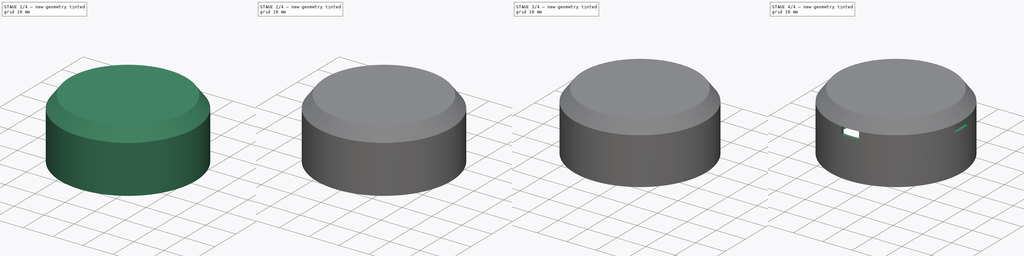
[diagram: build sequence overview — one tinted view per stage of 4, left to right]
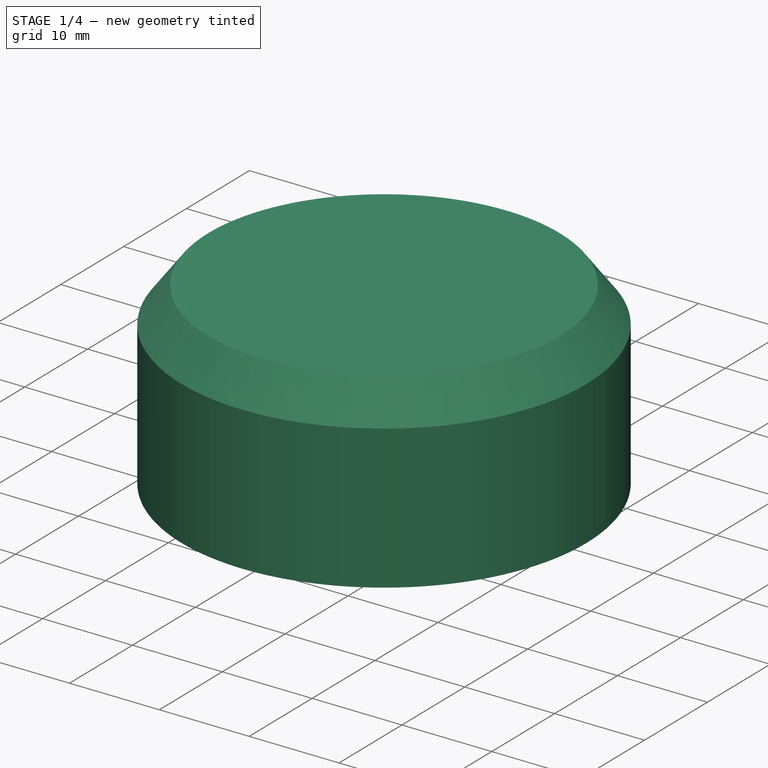
[diagram: stage 1 of 4 — iso view after this stage's code; geometry added in this stage tinted green]
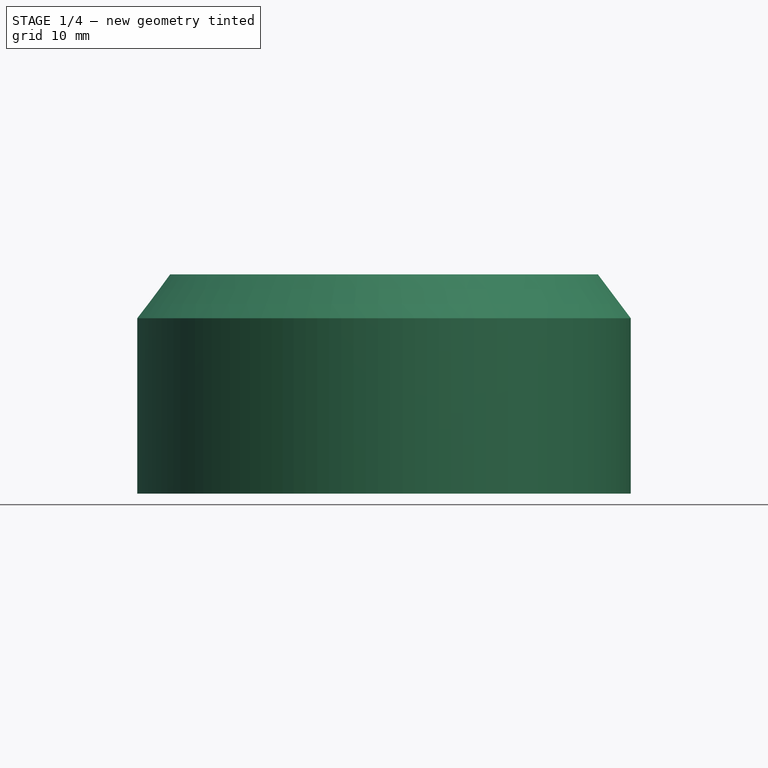
[diagram: stage 1 of 4 — front view after this stage's code; geometry added in this stage tinted green]
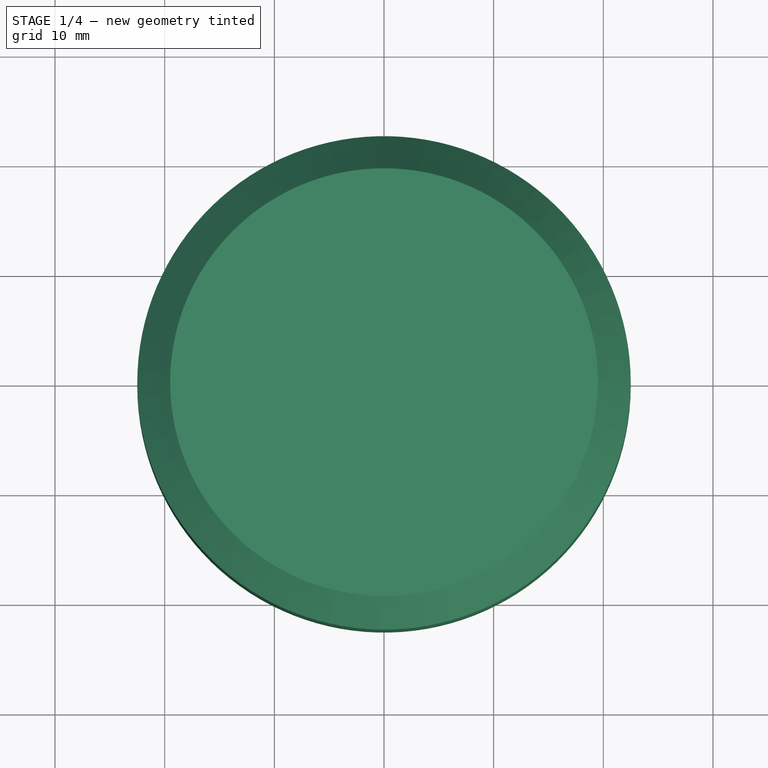
[diagram: stage 1 of 4 — top view after this stage's code; geometry added in this stage tinted green]
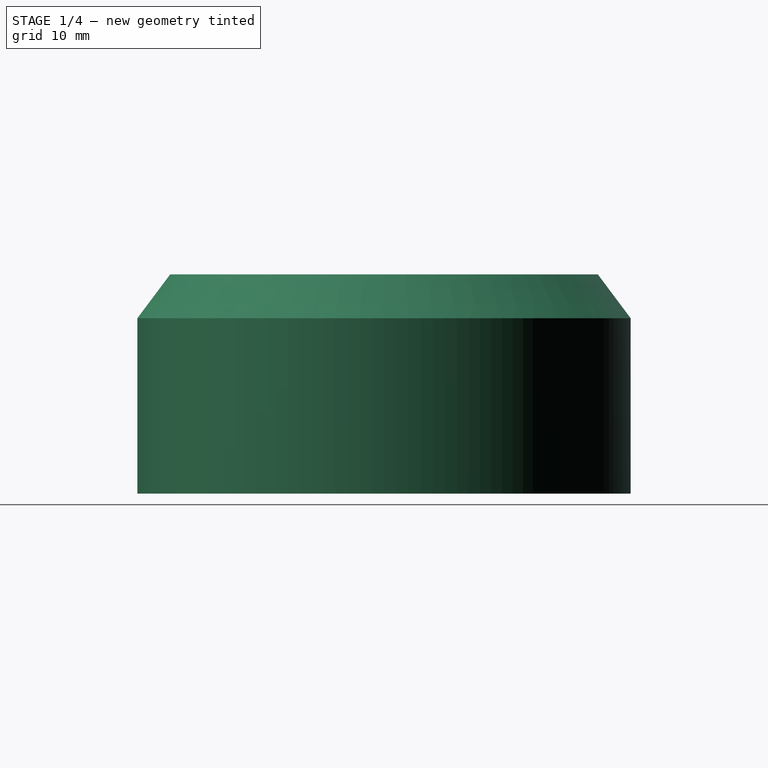
[diagram: stage 1 of 4 — right view after this stage's code; geometry added in this stage tinted green]
FCSTD DOCUMENT  (FreeCAD 0.19R24291 (Git))
Label: windCupHolderv5
License: All rights reserved
LicenseURL: http://en.wikipedia.org/wiki/All_rights_reserved
objects: Sketcher::SketchObject×6, PartDesign::Pad×5, PartDesign::Revolution×1, PartDesign::Chamfer×1, PartDesign::Plane×1, PartDesign::Pocket×1, PartDesign::PolarPattern×1, PartDesign::Body×1
note: 25 computed .brp shape members not serialized (recipe doc carries the construction recipe); baked Part::Feature solids carry a one-line shape summary decoded from their .brp

FEATURE [Sketcher::SketchObject] Sketch001
  FullyConstrained = true
  MapMode = 5
  Placement = pos=(0,0,0) rot=(1,0,0;1.5708rad)
  Support = -> [XZ_Plane]
  sketch-geometry (8):
    g0: LineSegment StartX=0 StartY=20 StartZ=0 EndX=19.5 EndY=20 EndZ=0
    g1: LineSegment StartX=19.5 StartY=20 StartZ=0 EndX=22.5 EndY=16 EndZ=0
    g2: LineSegment StartX=22.5 StartY=16 StartZ=0 EndX=22.5 EndY=0 EndZ=0
    g3: LineSegment StartX=0 StartY=20 StartZ=0 EndX=0 EndY=19 EndZ=0
    g4: LineSegment StartX=0 StartY=19 StartZ=0 EndX=19.25 EndY=19 EndZ=0
    g5: LineSegment StartX=19.25 StartY=19 StartZ=0 EndX=21.5 EndY=16 EndZ=0
    g6: LineSegment StartX=21.5 StartY=16 StartZ=0 EndX=21.5 EndY=0 EndZ=0
    g7: LineSegment StartX=21.5 StartY=0 StartZ=0 EndX=22.5 EndY=0 EndZ=0
  constraints (24):
    c: PointOnObject(g0,g-2)
    c: Horizontal(g0)
    c: Coincident(g1,g0)
    c: Coincident(g2,g1)
    c: Vertical(g2)
    c: DistanceY(g-1,g0) = 20
    c: DistanceY(g1,g0) = 4
    c: DistanceX(g0,g1) = 3
    c: Coincident(g3,g0)
    c: Vertical(g3)
    c: Coincident(g4,g3)
    c: Horizontal(g4)
    c: Coincident(g5,g4)
    c: Coincident(g6,g5)
    c: Vertical(g6)
    c: Coincident(g7,g6)
    c: Coincident(g7,g2)
    c: Horizontal(g7)
    c: DistanceY(g3,g0) = 1
    c: DistanceX(g7,g7) = 1
    c: DistanceX(g-1,g2) = 22.5
    c: Parallel(g5,g1)
    c: Distance(g5,g1) = 1
    c: DistanceY(g2,g1) = 16
FEATURE [PartDesign::Revolution] Revolution
  Angle = 360
  Axis = (0,-2e-16,1)
  Base = (0,0,0)
  Placement = pos=(0,0,0) rot=(1,0,0;1.5708rad)
  Profile = -> Sketch001
  ReferenceAxis = -> Sketch001 [V_Axis]
  Reversed = true
FEATURE [Sketcher::SketchObject] Sketch
  FullyConstrained = true
  MapMode = 5
  Placement = pos=(0,4.2e-15,19) rot=(1,0,0;3.14159rad)
  Support = -> [Revolution]
  sketch-geometry (1):
    g0: Circle CenterX=0 CenterY=0 CenterZ=0 NormalX=0 NormalY=0 NormalZ=1 AngleXU=0 Radius=4
  constraints (2):
    c: Coincident(g0,g-1)
    c: Radius(g0) = 4
FEATURE [PartDesign::Pad] Pad
  BaseFeature = -> Revolution
  Direction = (1,1,1)
  Length = 9
  Length2 = 100
  Placement = pos=(0,0,0) rot=(1,0,0;1.5708rad)
  Profile = -> Sketch
  Type = 0
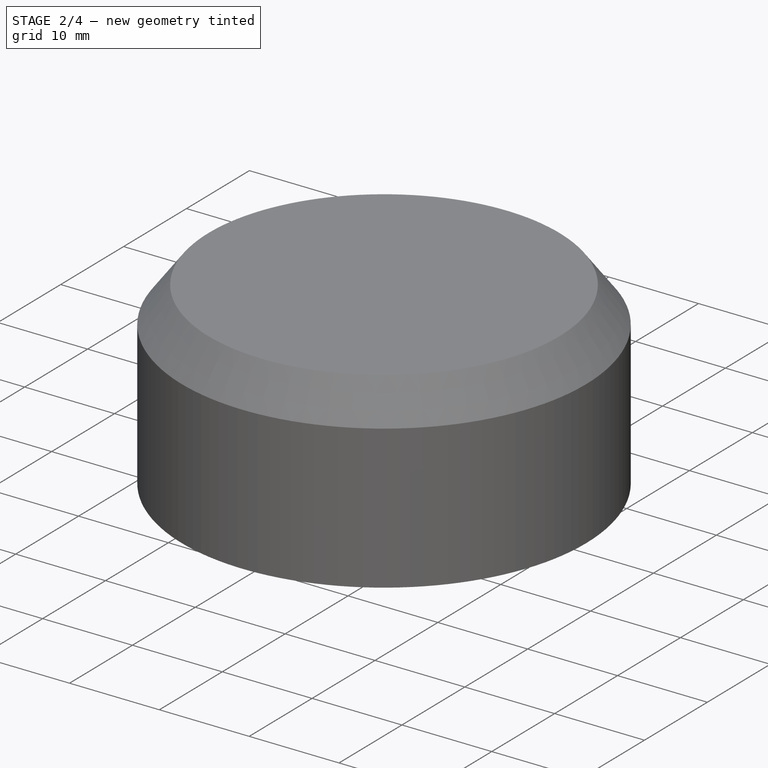
[diagram: stage 2 of 4 — iso view after this stage's code; geometry added in this stage tinted green]
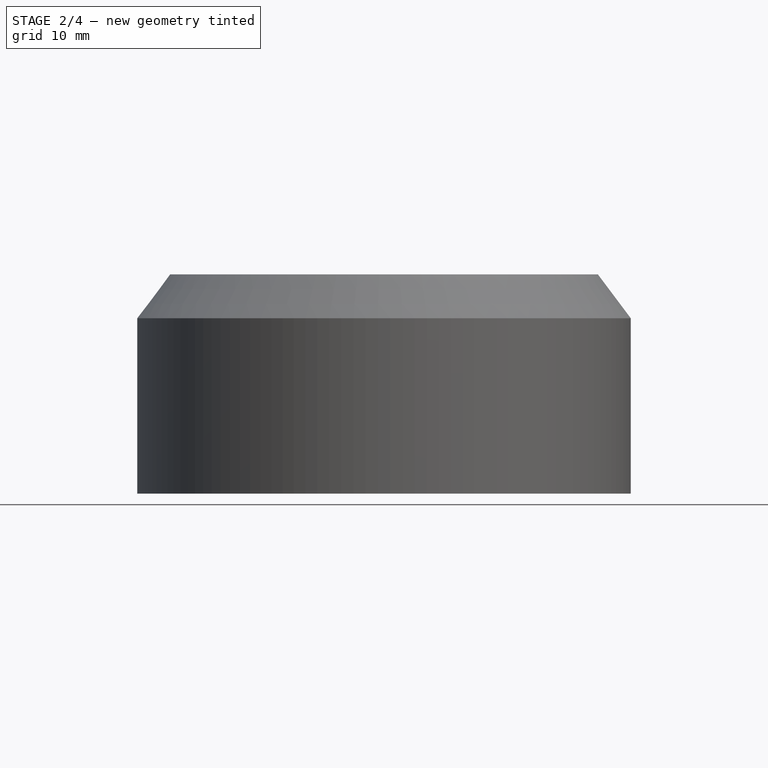
[diagram: stage 2 of 4 — front view after this stage's code; geometry added in this stage tinted green]
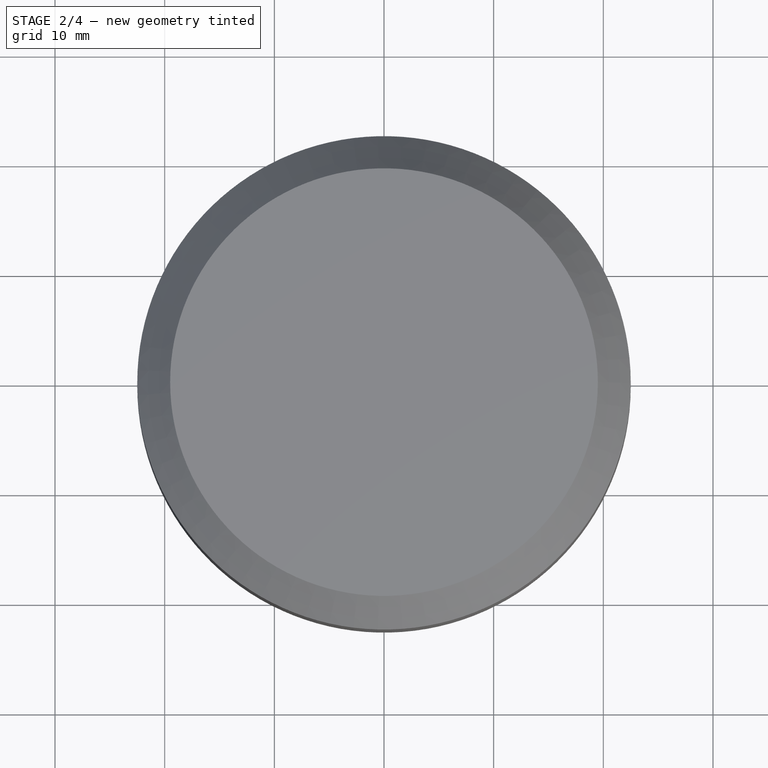
[diagram: stage 2 of 4 — top view after this stage's code; geometry added in this stage tinted green]
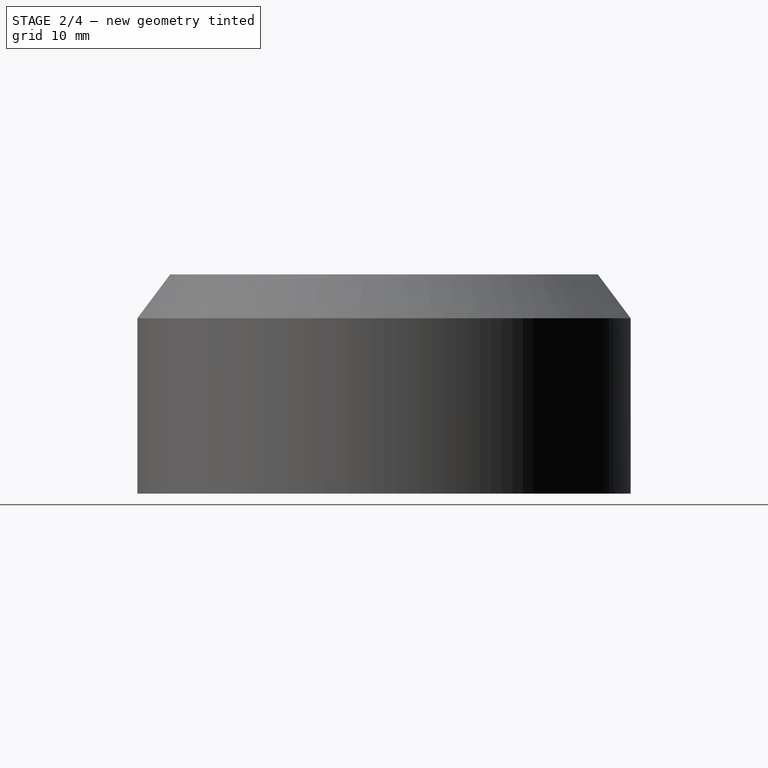
[diagram: stage 2 of 4 — right view after this stage's code; geometry added in this stage tinted green]
FEATURE [PartDesign::Pad] Pad001
  BaseFeature = -> Pad
  Direction = (1,1,1)
  Length = 9
  Length2 = 100
  Placement = pos=(0,0,0) rot=(1,0,0;1.5708rad)
  Profile = -> Sketch
  Type = 0
FEATURE [Sketcher::SketchObject] Sketch002
  FullyConstrained = true
  MapMode = 5
  Placement = pos=(0,8.4e-15,19) rot=(1,0,0;3.14159rad)
  Support = -> [Pad001]
  sketch-geometry (18):
    g0: ArcOfCircle CenterX=0 CenterY=0 CenterZ=0 NormalX=0 NormalY=0 NormalZ=1 AngleXU=0 Radius=4 StartAngle=1.9718 EndAngle=2.74059
    g1: LineSegment StartX=-21.2132 StartY=-21.2132 StartZ=0 EndX=21.2132 EndY=21.2132 EndZ=0
    g2: LineSegment StartX=-21.2132 StartY=21.2132 StartZ=0 EndX=21.2132 EndY=-21.2132 EndZ=0
    g3: LineSegment StartX=1.56136 StartY=3.68268 StartZ=0 EndX=8.63243 EndY=10.7538 EndZ=0
    g4: LineSegment StartX=8.63243 StartY=10.7538 StartZ=0 EndX=10.7538 EndY=8.63243 EndZ=0
    g5: LineSegment StartX=10.7538 StartY=8.63243 StartZ=0 EndX=3.68268 EndY=1.56136 EndZ=0
    g6: LineSegment StartX=-3.68268 StartY=-1.56136 StartZ=0 EndX=-10.7538 EndY=-8.63243 EndZ=0
    g7: LineSegment StartX=-10.7538 StartY=-8.63243 StartZ=0 EndX=-8.63243 EndY=-10.7538 EndZ=0
    g8: LineSegment StartX=-8.63243 StartY=-10.7538 StartZ=0 EndX=-1.56136 EndY=-3.68268 EndZ=0
    g9: LineSegment StartX=1.56136 StartY=-3.68268 StartZ=0 EndX=8.63243 EndY=-10.7538 EndZ=0
    g10: LineSegment StartX=8.63243 StartY=-10.7538 StartZ=0 EndX=10.7538 EndY=-8.63243 EndZ=0
    g11: LineSegment StartX=10.7538 StartY=-8.63243 StartZ=0 EndX=3.68268 EndY=-1.56136 EndZ=0
    g12: LineSegment StartX=-1.56136 StartY=3.68268 StartZ=0 EndX=-8.63243 EndY=10.7538 EndZ=0
    g13: LineSegment StartX=-8.63243 StartY=10.7538 StartZ=0 EndX=-10.7538 EndY=8.63243 EndZ=0
    g14: LineSegment StartX=-10.7538 StartY=8.63243 StartZ=0 EndX=-3.68268 EndY=1.56136 EndZ=0
    g15: ArcOfCircle CenterX=0 CenterY=0 CenterZ=0 NormalX=0 NormalY=0 NormalZ=1 AngleXU=0 Radius=4 StartAngle=3.54259 EndAngle=4.31139
    g16: ArcOfCircle CenterX=0 CenterY=0 CenterZ=0 NormalX=0 NormalY=0 NormalZ=1 AngleXU=0 Radius=4 StartAngle=5.11339 EndAngle=5.88218
    g17: ArcOfCircle CenterX=0 CenterY=0 CenterZ=0 NormalX=0 NormalY=0 NormalZ=1 AngleXU=0 Radius=4 StartAngle=0.401001 EndAngle=1.16979
  constraints (58):
    c: Coincident(g0,g-1)
    c: Equal(g1,g2)
    c: Symmetric(g1,g1,g0)
    c: Symmetric(g2,g2,g0)
    c: Angle(g1,g-1) = 2.35619
    c: Angle(g2,g1) = 1.5708
    c: Coincident(g4,g3)
    c: Coincident(g5,g4)
    c: PointOnObject(g5,g0)
    c: Coincident(g7,g6)
    c: Coincident(g8,g7)
    c: PointOnObject(g8,g0)
    c: PointOnObject(g9,g0)
    c: Coincident(g10,g9)
    c: Coincident(g11,g10)
    c: PointOnObject(g11,g0)
    c: Coincident(g13,g12)
    c: Coincident(g14,g13)
    c: Parallel(g12,g14)
    c: Parallel(g14,g2)
    c: Parallel(g3,g5)
    c: Parallel(g5,g1)
    c: Parallel(g9,g2)
    c: Parallel(g2,g11)
    c: Parallel(g8,g1)
    c: Parallel(g1,g6)
    c: Equal(g6,g8)
    c: Equal(g8,g14)
    c: Equal(g14,g12)
    c: Equal(g12,g3)
    c: Equal(g3,g5)
    c: Equal(g5,g11)
    c: Equal(g11,g9)
    c: Equal(g13,g4)
    c: Equal(g4,g10)
    c: Equal(g10,g7)
    c: Perpendicular(g6,g7)
    c: Perpendicular(g13,g14)
    c: Perpendicular(g4,g3)
    c: Perpendicular(g10,g11)
    c: Radius(g0) = 4
    c: Distance(g4) = 3
    c: Distance(g5) = 10
    c: Coincident(g0,g12)
    c: Coincident(g17,g3)
    c: Equal(g0,g15)
    c: Coincident(g0,g14)
    c: Coincident(g15,g6)
    c: Coincident(g0,g15)
    c: Equal(g15,g16)
    c: PointOnObject(g15,g8)
    c: PointOnObject(g16,g9)
    c: Coincident(g15,g16)
    c: Equal(g16,g17)
    c: PointOnObject(g16,g11)
    c: PointOnObject(g17,g5)
    c: Coincident(g16,g17)
    c: Distance(g2) = 60
FEATURE [PartDesign::Pad] Pad002
  BaseFeature = -> Pad001
  Direction = (1,1,1)
  Length = 6
  Length2 = 100
  Placement = pos=(0,0,0) rot=(1,0,0;1.5708rad)
  Profile = -> Sketch002
  Type = 0
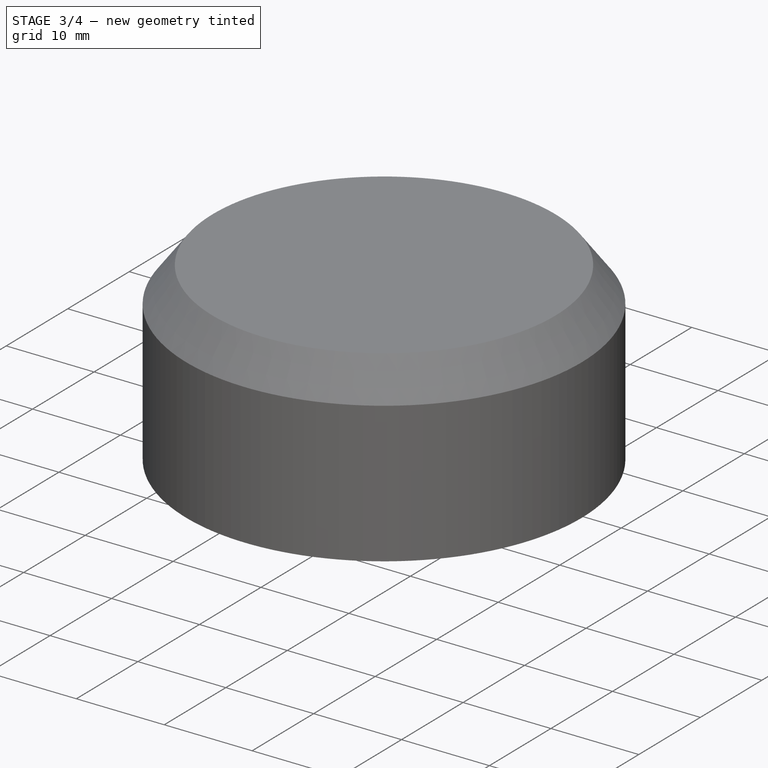
[diagram: stage 3 of 4 — iso view after this stage's code; geometry added in this stage tinted green]
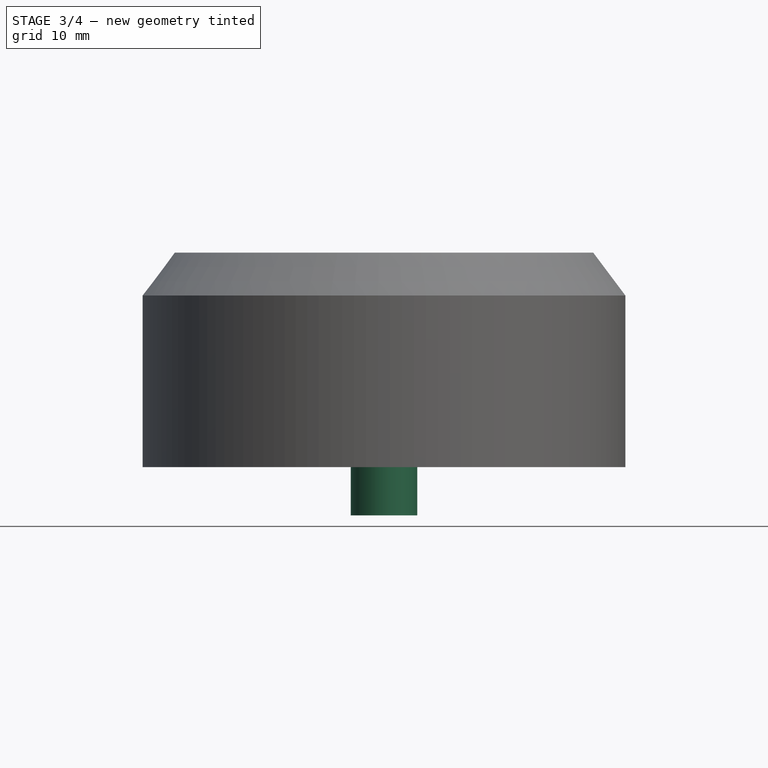
[diagram: stage 3 of 4 — front view after this stage's code; geometry added in this stage tinted green]
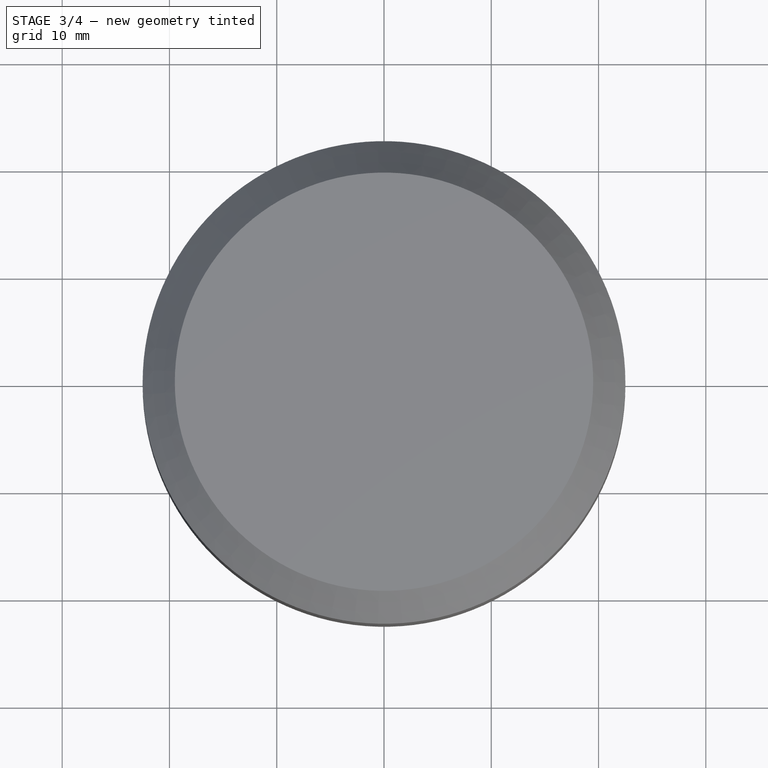
[diagram: stage 3 of 4 — top view after this stage's code; geometry added in this stage tinted green]
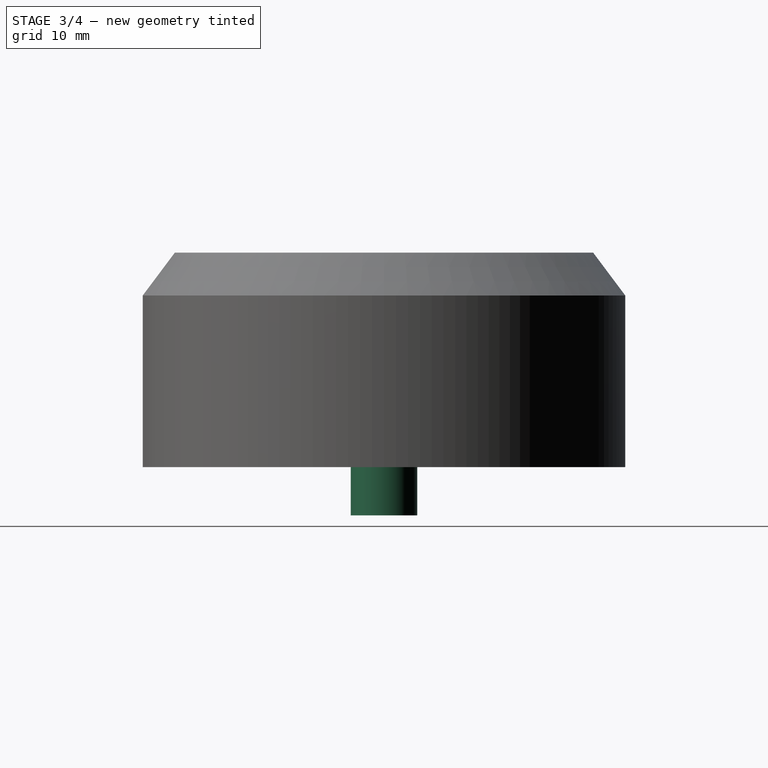
[diagram: stage 3 of 4 — right view after this stage's code; geometry added in this stage tinted green]
FEATURE [PartDesign::Chamfer] Chamfer
  Angle = 45
  Base = -> Pad002 [Edge50,Edge45,Edge60,Edge55]
  BaseFeature = -> Pad002
  ChamferType = 0
  FlipDirection = false
  Placement = pos=(0,0,0) rot=(1,0,0;1.5708rad)
  Size = 5.99
  Size2 = 1
  SupportTransform = false
FEATURE [Sketcher::SketchObject] Sketch003
  FullyConstrained = true
  MapMode = 5
  Placement = pos=(0,3.3e-15,10) rot=(1,0,0;3.14159rad)
  Support = -> [Chamfer]
  sketch-geometry (2):
    g0: Circle CenterX=0 CenterY=0 CenterZ=0 NormalX=0 NormalY=0 NormalZ=1 AngleXU=0 Radius=3.1
    g1: Circle CenterX=0 CenterY=0 CenterZ=0 NormalX=0 NormalY=0 NormalZ=1 AngleXU=0 Radius=1.3
  constraints (4):
    c: Coincident(g0,g-1)
    c: Radius(g0) = 3.1
    c: Coincident(g1,g0)
    c: Radius(g1) = 1.3
FEATURE [PartDesign::Pad] Pad003
  BaseFeature = -> Chamfer
  Direction = (1,1,1)
  Length = 14.5
  Length2 = 100
  Placement = pos=(0,0,0) rot=(1,0,0;1.5708rad)
  Profile = -> Sketch003
  Type = 0
FEATURE [Sketcher::SketchObject] Sketch004
  FullyConstrained = true
  MapMode = 5
  Placement = pos=(0,1.27e-14,19) rot=(1,0,0;3.14159rad)
  Support = -> [Pad003]
  sketch-geometry (12):
    g0: Circle CenterX=15 CenterY=0 CenterZ=0 NormalX=0 NormalY=0 NormalZ=1 AngleXU=0 Radius=1.3
    g1: Circle CenterX=15 CenterY=0 CenterZ=0 NormalX=0 NormalY=0 NormalZ=1 AngleXU=0 Radius=3
    g2: Circle CenterX=0 CenterY=15 CenterZ=0 NormalX=0 NormalY=0 NormalZ=1 AngleXU=0 Radius=1.3
    g3: Circle CenterX=0 CenterY=15 CenterZ=0 NormalX=0 NormalY=0 NormalZ=1 AngleXU=0 Radius=3
    g4: Circle CenterX=-15 CenterY=0 CenterZ=0 NormalX=0 NormalY=0 NormalZ=1 AngleXU=0 Radius=1.3
    g5: Circle CenterX=-15 CenterY=0 CenterZ=0 NormalX=0 NormalY=0 NormalZ=1 AngleXU=0 Radius=3
    g6: Circle CenterX=0 CenterY=-15 CenterZ=0 NormalX=0 NormalY=0 NormalZ=1 AngleXU=0 Radius=1.3
    g7: Circle CenterX=0 CenterY=-15 CenterZ=0 NormalX=0 NormalY=0 NormalZ=1 AngleXU=0 Radius=3
    g8: LineSegment StartX=0 StartY=0 StartZ=0 EndX=0 EndY=15 EndZ=0
    g9: LineSegment StartX=0 StartY=0 StartZ=0 EndX=15 EndY=0 EndZ=0
    g10: LineSegment StartX=0 StartY=0 StartZ=0 EndX=-15 EndY=0 EndZ=0
    g11: LineSegment StartX=0 StartY=0 StartZ=0 EndX=0 EndY=-15 EndZ=0
  constraints (28):
    c: PointOnObject(g0,g-1)
    c: Coincident(g1,g0)
    c: PointOnObject(g2,g-2)
    c: Coincident(g3,g2)
    c: PointOnObject(g4,g-1)
    c: Coincident(g5,g4)
    c: PointOnObject(g6,g-2)
    c: Coincident(g7,g6)
    c: Equal(g2,g4)
    c: Equal(g4,g6)
    c: Equal(g6,g0)
    c: Equal(g5,g3)
    c: Equal(g3,g1)
    c: Equal(g1,g7)
    c: Coincident(g8,g-1)
    c: Coincident(g8,g2)
    c: Coincident(g9,g-1)
    c: Coincident(g9,g0)
    c: Coincident(g10,g-1)
    c: Coincident(g10,g4)
    c: Coincident(g11,g-1)
    c: Coincident(g11,g6)
    c: Equal(g9,g8)
    c: Equal(g8,g10)
    c: Equal(g10,g11)
    c: DistanceX(g9,g9) = 15
    c: Radius(g1) = 3
    c: Radius(g0) = 1.3
FEATURE [PartDesign::Pad] Pad004
  BaseFeature = -> Pad003
  Direction = (1,1,1)
  Length = 3
  Length2 = 100
  Placement = pos=(0,0,0) rot=(1,0,0;1.5708rad)
  Profile = -> Sketch004
  Type = 0
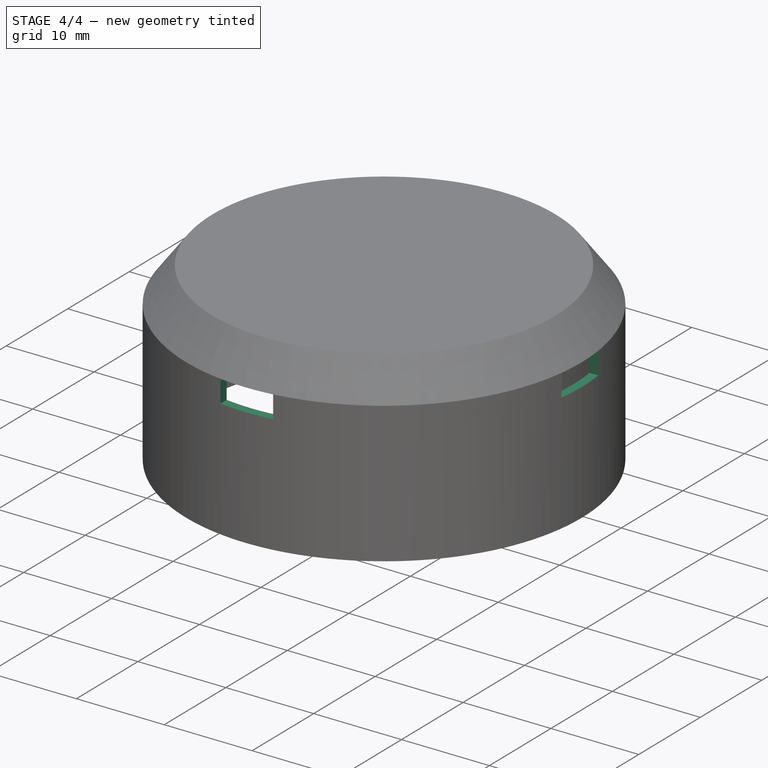
[diagram: stage 4 of 4 — iso view after this stage's code; geometry added in this stage tinted green]
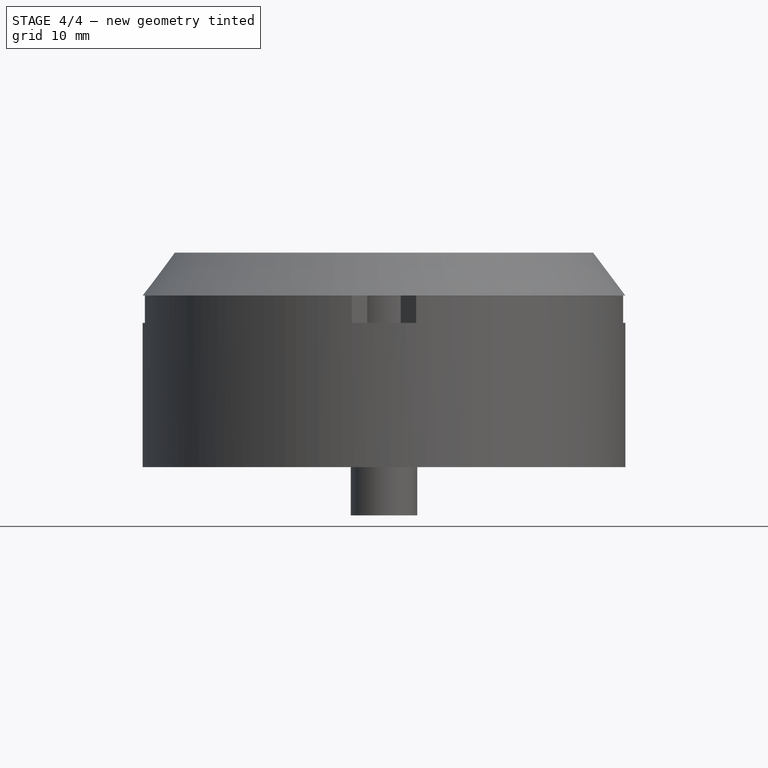
[diagram: stage 4 of 4 — front view after this stage's code; geometry added in this stage tinted green]
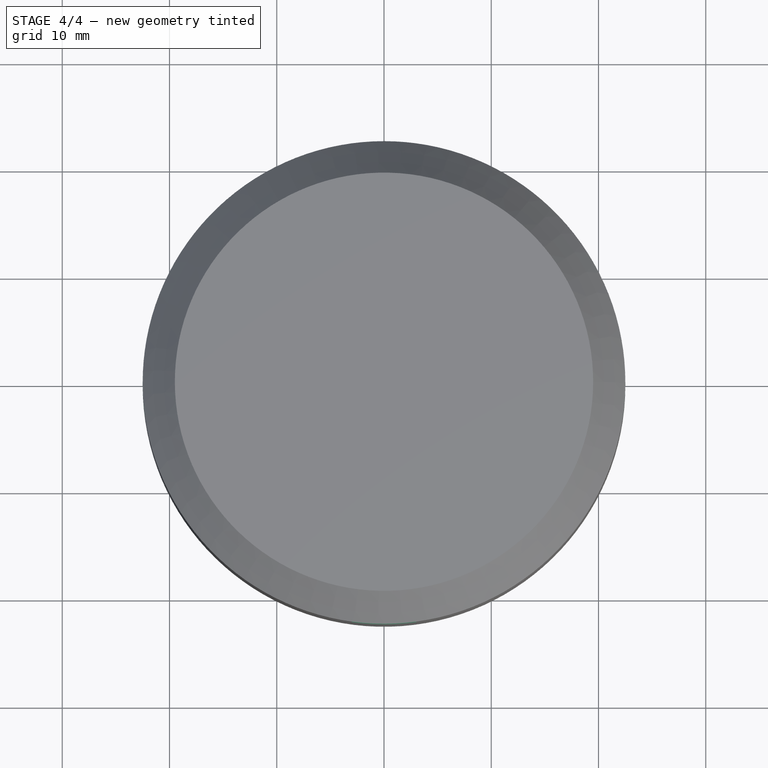
[diagram: stage 4 of 4 — top view after this stage's code; geometry added in this stage tinted green]
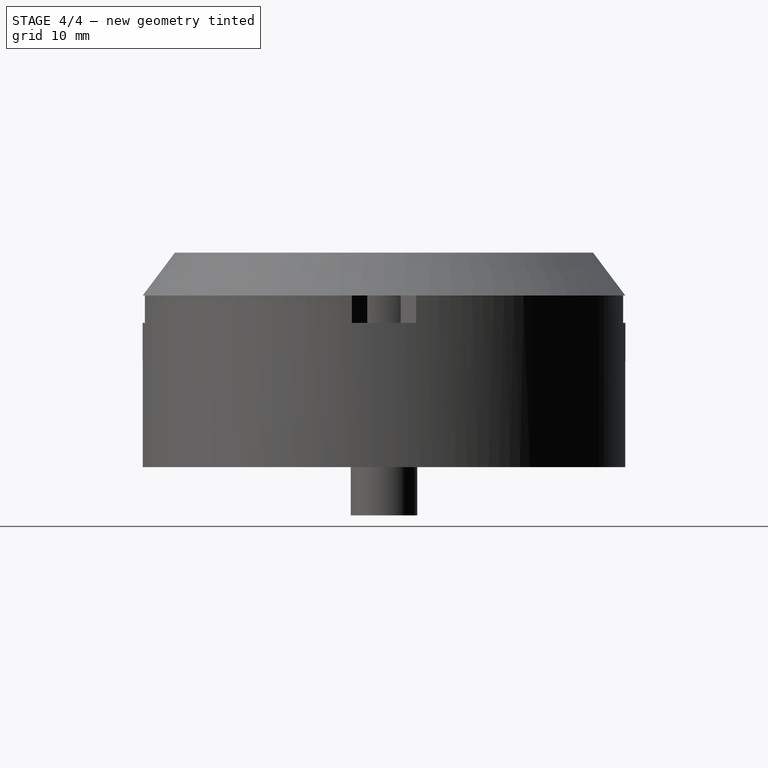
[diagram: stage 4 of 4 — right view after this stage's code; geometry added in this stage tinted green]
FEATURE [PartDesign::Plane] DatumPlane
  AttachmentOffset = pos=(0,22.5,0) rot=(-1,0,0;1.5708rad)
  Length = 60
  MapMode = 45
  Placement = pos=(-7.1e-15,22.5,8) rot=(-1,0,0;1.5708rad)
  ResizeMode = 0
  Support = -> [Pad004]
  Width = 60
FEATURE [Sketcher::SketchObject] Sketch005
  FullyConstrained = true
  MapMode = 5
  Placement = pos=(-7.1e-15,22.5,8) rot=(-1,0,0;1.5708rad)
  Support = -> [DatumPlane]
  sketch-geometry (4):
    g0: LineSegment StartX=-3 StartY=-5.45 StartZ=0 EndX=3 EndY=-5.45 EndZ=0
    g1: LineSegment StartX=3 StartY=-5.45 StartZ=0 EndX=3 EndY=-8 EndZ=0
    g2: LineSegment StartX=3 StartY=-8 StartZ=0 EndX=-3 EndY=-8 EndZ=0
    g3: LineSegment StartX=-3 StartY=-8 StartZ=0 EndX=-3 EndY=-5.45 EndZ=0
  constraints (12):
    c: Coincident(g0,g1)
    c: Coincident(g1,g2)
    c: Coincident(g2,g3)
    c: Coincident(g3,g0)
    c: Horizontal(g0)
    c: Horizontal(g2)
    c: Vertical(g1)
    c: Vertical(g3)
    c: DistanceY(g2,g-1) = 8
    c: DistanceX(g0,g0) = 6
    c: DistanceX(g-1,g1) = 3
    c: DistanceY(g1,g1) = 2.55
FEATURE [PartDesign::Pocket] Pocket
  BaseFeature = -> Pad004
  Length = 2
  Length2 = 100
  Placement = pos=(0,0,0) rot=(1,0,0;1.5708rad)
  Profile = -> Sketch005
  Type = 0
FEATURE [PartDesign::PolarPattern] PolarPattern
  Angle = 360
  Axis = -> Z_Axis
  BaseFeature = -> Pocket
  Occurrences = 4
  Originals = -> [Pocket]
  Placement = pos=(0,0,0) rot=(1,0,0;1.5708rad)
FEATURE [PartDesign::Body] Body
  Group = -> [Sketch001,Revolution,Sketch,Pad,Pad001,Sketch002,Pad002,Chamfer,Sketch003,Pad003,Sketch004,Pad004,DatumPlane,Sketch005,Pocket,PolarPattern]
  Origin = -> Origin
  Tip = -> PolarPattern
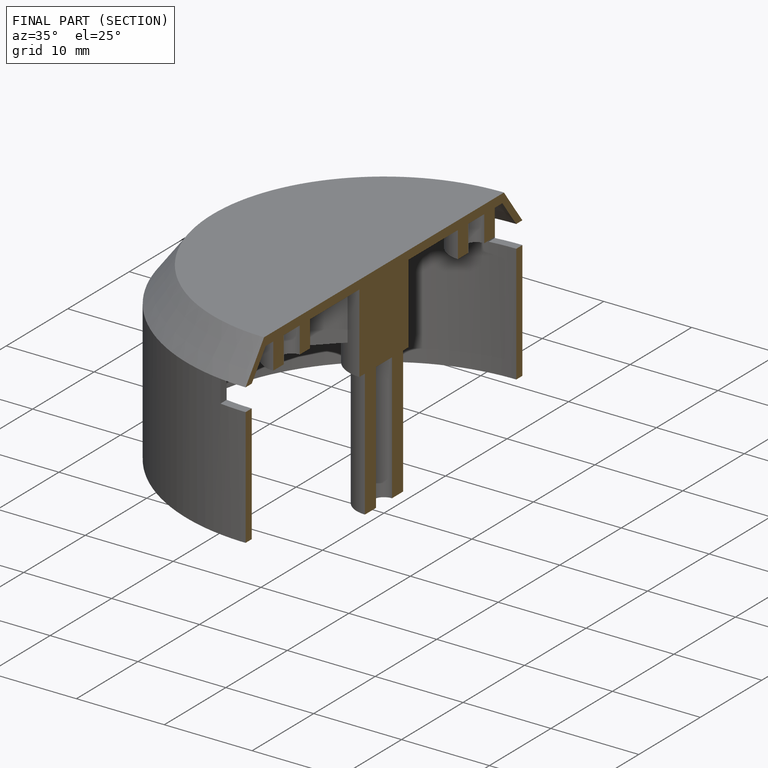
[diagram: finished part — half-section view (interior)]
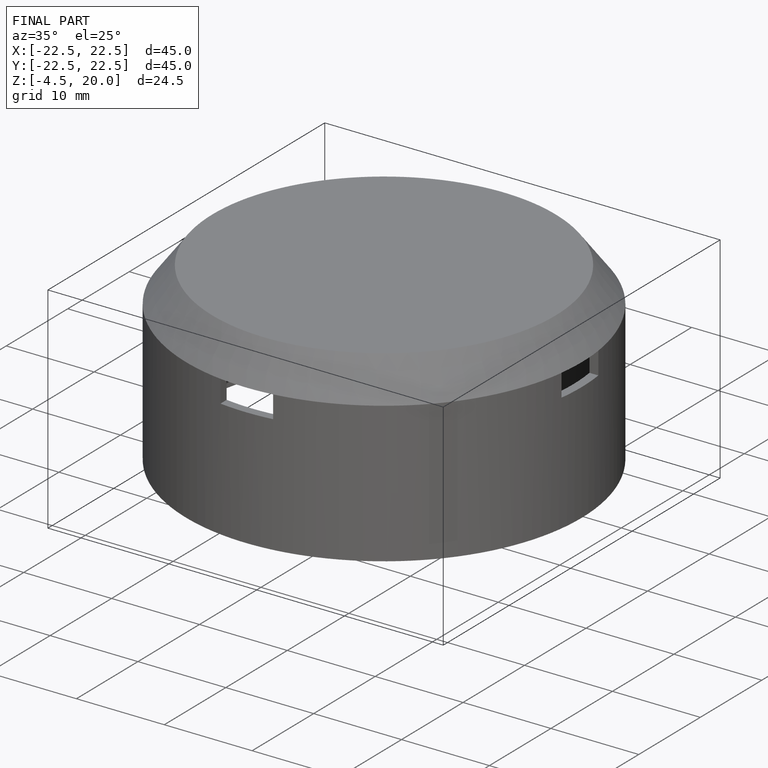
[diagram: finished part — iso view with bounding-box wireframe]
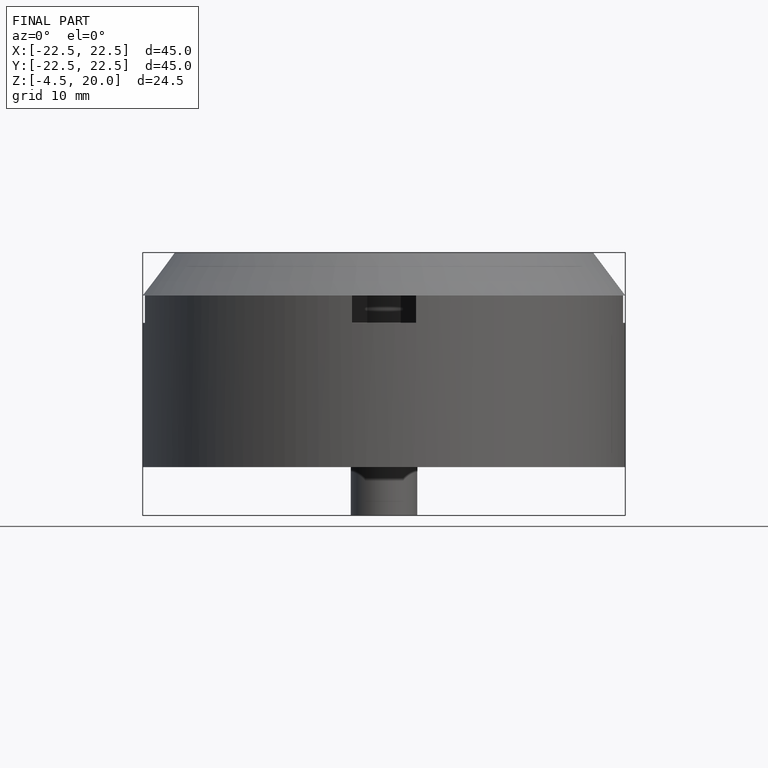
[diagram: finished part — front view with bounding-box wireframe]
